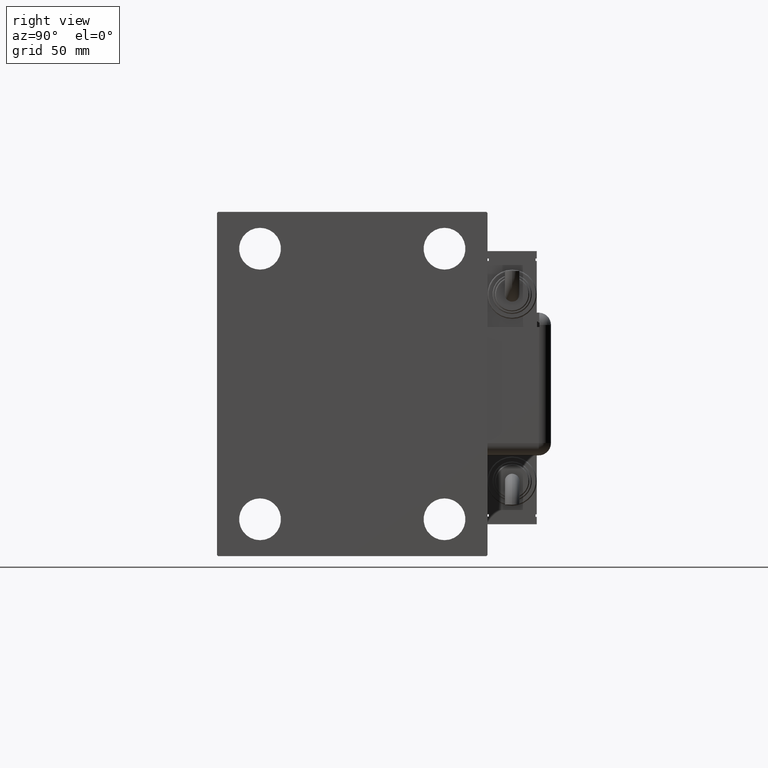
[diagram: clean part render]
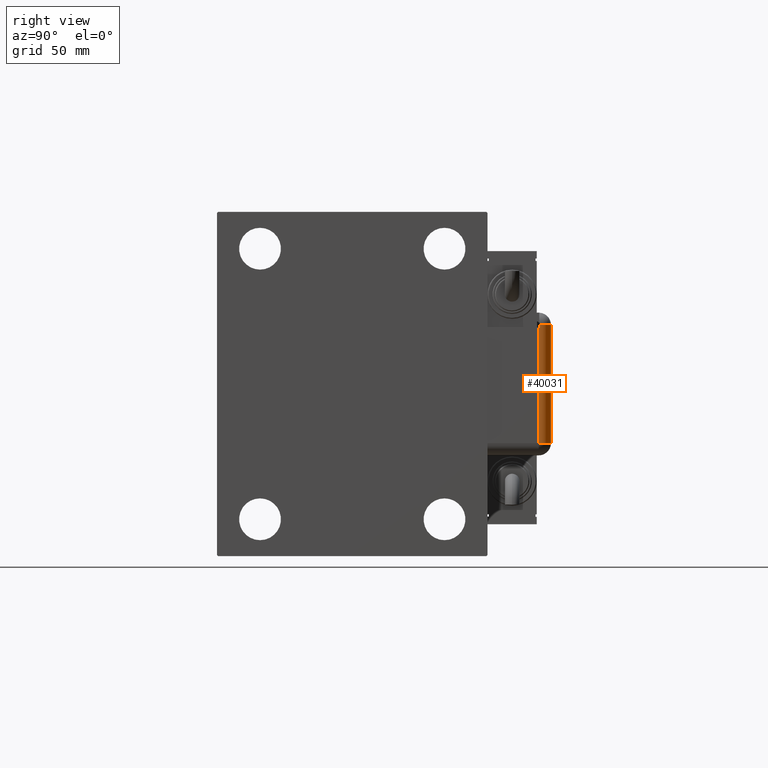
[diagram: same view with one face highlighted and labeled with its STEP entity id]
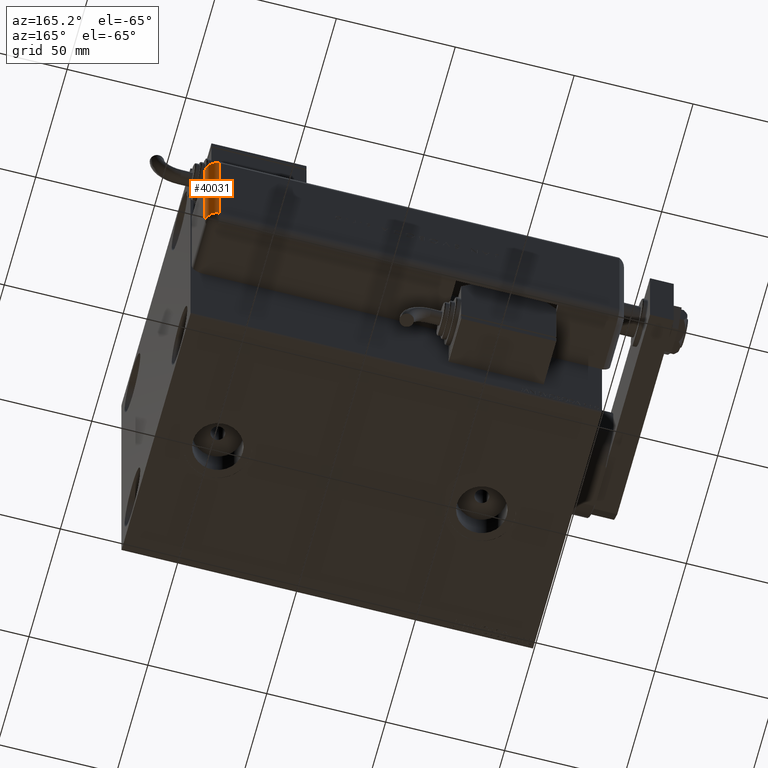
[diagram: same view with one face highlighted and labeled with its STEP entity id]
A machine part, right view. The second image highlights one B-rep face of the part: STEP entity #40031.
A second angle (auxiliary view) of the same face is appended — the face is thin or edge-on in the first view.
In plain terms, the highlighted cylindrical surface (edge-blend (fillet) strip) has radius 5 mm, axis along (0, 0, 1).
Its self-contained STEP definition (entity closure, byte-faithful):
#2046 = EDGE_CURVE ( 'NONE', #28716, #29649, #34038, .T. ) ;
#2319 = ORIENTED_EDGE ( 'NONE', *, *, #26138, .F. ) ;
#2813 = CARTESIAN_POINT ( 'NONE',  ( -23.99999999999999645, 20.79999999999998295, 5.000000000000002665 ) ) ;
#3770 = LINE ( 'NONE', #13443, #21589 ) ;
#3781 = CYLINDRICAL_SURFACE ( 'NONE', #12288, 5.000000000000000000 ) ;
#4972 = EDGE_LOOP ( 'NONE', ( #2319, #51720, #40765, #17828, #9925, #13855 ) ) ;
#6375 = VECTOR ( 'NONE', #21418, 1000.000000000000000 ) ;
#6676 = DIRECTION ( 'NONE',  ( -1.000000000000000000, -0.000000000000000000, 0.000000000000000000 ) ) ;
#7122 = FACE_OUTER_BOUND ( 'NONE', #4972, .T. ) ;
#7132 = VERTEX_POINT ( 'NONE', #22742 ) ;
#9925 = ORIENTED_EDGE ( 'NONE', *, *, #41724, .F. ) ;
#11026 = CARTESIAN_POINT ( 'NONE',  ( 23.00000000000000000, 20.79999999999998295, 1.734723475976807094E-15 ) ) ;
#11513 = DIRECTION ( 'NONE',  ( 0.000000000000000000, 1.526556658859590243E-14, -1.000000000000000000 ) ) ;
#11655 = DIRECTION ( 'NONE',  ( 0.000000000000000000, 0.000000000000000000, -1.000000000000000000 ) ) ;
#12288 = AXIS2_PLACEMENT_3D ( 'NONE', #25566, #44880, #11655 ) ;
#13443 = CARTESIAN_POINT ( 'NONE',  ( -28.99999999999999645, 21.00000000000000000, 0.004001601281286050471 ) ) ;
#13641 = CARTESIAN_POINT ( 'NONE',  ( -23.99999999999999645, 20.79999999999998295, 0.000000000000000000 ) ) ;
#13855 = ORIENTED_EDGE ( 'NONE', *, *, #33011, .F. ) ;
#16177 = VECTOR ( 'NONE', #16256, 1000.000000000000000 ) ;
#16256 = DIRECTION ( 'NONE',  ( -1.000000000000000000, 0.000000000000000000, 0.000000000000000000 ) ) ;
#16427 = DIRECTION ( 'NONE',  ( 1.000000000000000000, -0.000000000000000000, 0.000000000000000000 ) ) ;
#17828 = ORIENTED_EDGE ( 'NONE', *, *, #2046, .T. ) ;
#18775 = CARTESIAN_POINT ( 'NONE',  ( -23.99999999999999645, 25.79999999999998295, 5.000000000000004441 ) ) ;
#20799 = LINE ( 'NONE', #18775, #16177 ) ;
#21418 = DIRECTION ( 'NONE',  ( 1.000000000000000000, -0.000000000000000000, -0.000000000000000000 ) ) ;
#21589 = VECTOR ( 'NONE', #27045, 1000.000000000000000 ) ;
#22742 = CARTESIAN_POINT ( 'NONE',  ( 23.99999999999999289, 25.79999999999998295, 5.000000000000004441 ) ) ;
#25195 = DIRECTION ( 'NONE',  ( 0.000000000000000000, 0.000000000000000000, -1.000000000000000000 ) ) ;
#25566 = CARTESIAN_POINT ( 'NONE',  ( -28.99999999999999645, 20.79999999999998295, 5.000000000000004441 ) ) ;
#25682 = CARTESIAN_POINT ( 'NONE',  ( 23.00000000000000000, 21.00000000000000000, 0.004001601281286050471 ) ) ;
#26138 = EDGE_CURVE ( 'NONE', #35954, #32948, #3770, .T. ) ;
#27045 = DIRECTION ( 'NONE',  ( 1.000000000000000000, 0.000000000000000000, 0.000000000000000000 ) ) ;
#28216 = CIRCLE ( 'NONE', #38676, 5.000000000000000000 ) ;
#28716 = VERTEX_POINT ( 'NONE', #13641 ) ;
#29388 = AXIS2_PLACEMENT_3D ( 'NONE', #40871, #59346, #44212 ) ;
#29649 = VERTEX_POINT ( 'NONE', #55639 ) ;
#30481 = LINE ( 'NONE', #36707, #6375 ) ;
#30932 = CARTESIAN_POINT ( 'NONE',  ( 23.99999999999999289, 21.00000000000000000, 0.004001601281283882067 ) ) ;
#32948 = VERTEX_POINT ( 'NONE', #30932 ) ;
#33011 = EDGE_CURVE ( 'NONE', #32948, #7132, #40963, .T. ) ;
#34038 = CIRCLE ( 'NONE', #52527, 5.000000000000000000 ) ;
#35954 = VERTEX_POINT ( 'NONE', #25682 ) ;
#36707 = CARTESIAN_POINT ( 'NONE',  ( 23.99999999999999289, 20.79999999999998295, 0.000000000000000000 ) ) ;
#37455 = EDGE_CURVE ( 'NONE', #28716, #49940, #30481, .T. ) ;
#38676 = AXIS2_PLACEMENT_3D ( 'NONE', #56591, #6676, #11513 ) ;
#40031 = ADVANCED_FACE ( 'NONE', ( #7122 ), #3781, .T. ) ;
#40765 = ORIENTED_EDGE ( 'NONE', *, *, #37455, .F. ) ;
#40871 = CARTESIAN_POINT ( 'NONE',  ( 23.99999999999999289, 20.79999999999998295, 5.000000000000000000 ) ) ;
#40963 = CIRCLE ( 'NONE', #29388, 5.000000000000000000 ) ;
#41724 = EDGE_CURVE ( 'NONE', #7132, #29649, #20799, .T. ) ;
#44212 = DIRECTION ( 'NONE',  ( 0.000000000000000000, 0.000000000000000000, -1.000000000000000000 ) ) ;
#44880 = DIRECTION ( 'NONE',  ( 1.000000000000000000, 0.000000000000000000, 0.000000000000000000 ) ) ;
#49940 = VERTEX_POINT ( 'NONE', #11026 ) ;
#51720 = ORIENTED_EDGE ( 'NONE', *, *, #58773, .T. ) ;
#52527 = AXIS2_PLACEMENT_3D ( 'NONE', #2813, #16427, #25195 ) ;
#55639 = CARTESIAN_POINT ( 'NONE',  ( -23.99999999999999645, 25.79999999999998295, 5.000000000000004441 ) ) ;
#56591 = CARTESIAN_POINT ( 'NONE',  ( 23.00000000000000000, 20.79999999999998295, 5.000000000000004441 ) ) ;
#58773 = EDGE_CURVE ( 'NONE', #35954, #49940, #28216, .T. ) ;
#59346 = DIRECTION ( 'NONE',  ( 1.000000000000000000, -0.000000000000000000, 0.000000000000000000 ) ) ;